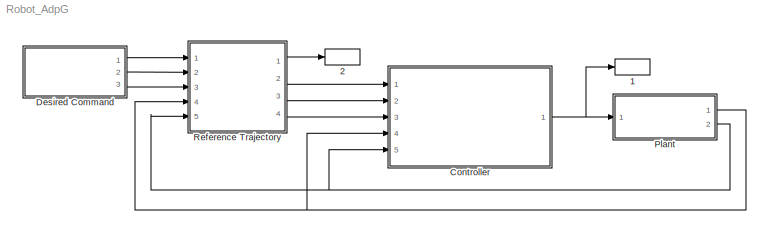
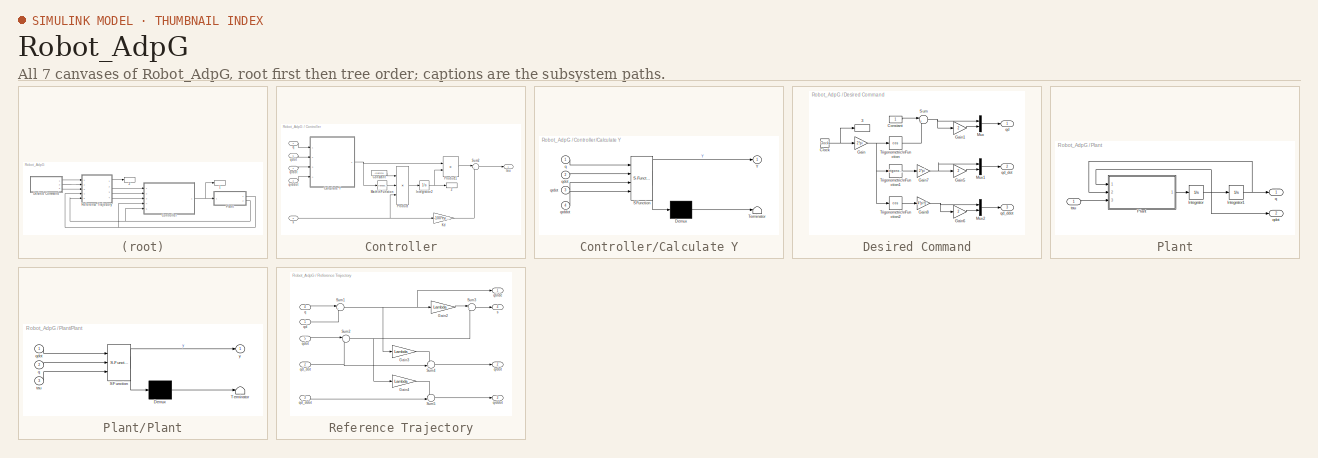
[diagram: thumbnail index - all 7 canvases of the model, root first then tree order]
MODEL Robot_AdpG
KIND model
BLOCK [ToWorkspace] 1
  MaxDataPoints = inf
  Ports = [1]
  SID = 77
  SampleTime = -1
  VariableName = tau
BLOCK [ToWorkspace] 2
  MaxDataPoints = inf
  Ports = [1]
  SID = 73
  SampleTime = -1
  VariableName = qtilde
BLOCK [SubSystem] Controller
  FunctionWithSeparateData = off
  MaskHideContents = off
  MinAlgLoopOccurrences = off
  Opaque = off
  Ports = [5, 1]
  PropExecContextOutsideSubsystem = off
  RTWSystemCode = Auto
  RequestExecContextInheritance = off
  SID = 82
BLOCK [ToWorkspace] Controller/2
  MaxDataPoints = inf
  Ports = [1]
  SID = 98
  SampleTime = -1
  VariableName = ahat
BLOCK [SubSystem] Controller/Calculate Y
  ErrorFcn = Stateflow.Translate.translate
  FunctionWithSeparateData = off
  MaskHideContents = off
  MinAlgLoopOccurrences = off
  Opaque = off
  PermitHierarchicalResolution = ExplicitOnly
  Ports = [4, 1]
  PropExecContextOutsideSubsystem = off
  RTWSystemCode = Auto
  RequestExecContextInheritance = off
  SFBlockType = MATLAB Function
  SID = 13
  TreatAsAtomicUnit = on
BLOCK [Demux] Controller/Calculate Y/ Demux 
  Outputs = 1
  Ports = [1, 1]
  SID = 13::27
BLOCK [S-Function] Controller/Calculate Y/ SFunction 
  EnableBusSupport = on
  FunctionName = sf_sfun
  PortCounts = [4 2]
  Ports = [4, 2]
  SID = 13::26
  Tag = Stateflow S-Function Robot_AdpG 1
BLOCK [Terminator] Controller/Calculate Y/ Terminator 
  SID = 13::29
BLOCK [Outport] Controller/Calculate Y/Y
  IconDisplay = Port number
  SID = 13::5
BLOCK [Inport] Controller/Calculate Y/q
  IconDisplay = Port number
  SID = 13::1
BLOCK [Inport] Controller/Calculate Y/qdot
  IconDisplay = Port number
  Port = 2
  SID = 13::18
BLOCK [Inport] Controller/Calculate Y/qrddot
  IconDisplay = Port number
  Port = 4
  SID = 13::21
BLOCK [Inport] Controller/Calculate Y/qrdot
  IconDisplay = Port number
  Port = 3
  SID = 13::20
BLOCK [Constant] Controller/Constant
  SID = 46
  Value = -Gamma
BLOCK [Integrator] Controller/Integrator2
  InitialCondition = [0;0;0;0;0;0;0];
  Ports = [1, 1]
  SID = 49
BLOCK [Gain] Controller/Kd
  Gain = -100*eye(2,2)
  Multiplication = Matrix(K*u)
  OutDataTypeStr = Inherit: Inherit via internal rule
  ParamDataTypeStr = Inherit: Inherit via internal rule
  SID = 51
  SaturateOnIntegerOverflow = off
BLOCK [Math] Controller/Math\nFunction
  Operator = transpose
  Ports = [1, 1]
  SID = 48
BLOCK [Product] Controller/Product
  InputSameDT = off
  Inputs = 3
  Multiplication = Matrix(*)
  OutDataTypeStr = Inherit: Inherit via internal rule
  Ports = [3, 1]
  SID = 47
  SaturateOnIntegerOverflow = off
BLOCK [Product] Controller/Product1
  InputSameDT = off
  Multiplication = Matrix(*)
  OutDataTypeStr = Inherit: Inherit via internal rule
  Ports = [2, 1]
  SID = 50
  SaturateOnIntegerOverflow = off
BLOCK [Sum] Controller/Sum2
  IconShape = round
  InputSameDT = off
  Inputs = |++
  OutDataTypeStr = Inherit: Inherit via internal rule
  Ports = [2, 1]
  SID = 52
  SaturateOnIntegerOverflow = off
BLOCK [Inport] Controller/q
  IconDisplay = Port number
  Port = 4
  SID = 83
BLOCK [Inport] Controller/qdot
  IconDisplay = Port number
  Port = 5
  SID = 85
BLOCK [Inport] Controller/qrddot
  IconDisplay = Port number
  Port = 2
  SID = 87
BLOCK [Inport] Controller/qrdot
  IconDisplay = Port number
  SID = 86
BLOCK [Inport] Controller/s
  IconDisplay = Port number
  Port = 3
  SID = 88
BLOCK [Outport] Controller/tau
  IconDisplay = Port number
  SID = 84
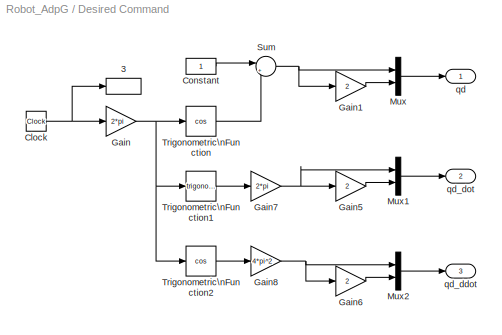
BLOCK [SubSystem] Desired Command
  FunctionWithSeparateData = off
  MaskHideContents = off
  MinAlgLoopOccurrences = off
  Opaque = off
  Ports = [0, 3]
  PropExecContextOutsideSubsystem = off
  RTWSystemCode = Auto
  RequestExecContextInheritance = off
  SID = 92
BLOCK [ToWorkspace] Desired Command/3
  MaxDataPoints = inf
  Ports = [1]
  SID = 74
  SampleTime = -1
  VariableName = time
BLOCK [Clock] Desired Command/Clock
  SID = 19
BLOCK [Constant] Desired Command/Constant
  SID = 21
BLOCK [Gain] Desired Command/Gain
  Gain = 2*pi
  OutDataTypeStr = Inherit: Inherit via internal rule
  ParamDataTypeStr = Inherit: Inherit via internal rule
  SID = 25
  SaturateOnIntegerOverflow = off
BLOCK [Gain] Desired Command/Gain1
  Gain = 2
  OutDataTypeStr = Inherit: Inherit via internal rule
  ParamDataTypeStr = Inherit: Inherit via internal rule
  SID = 27
  SaturateOnIntegerOverflow = off
BLOCK [Gain] Desired Command/Gain5
  Gain = 2
  OutDataTypeStr = Inherit: Inherit via internal rule
  ParamDataTypeStr = Inherit: Inherit via internal rule
  SID = 57
  SaturateOnIntegerOverflow = off
BLOCK [Gain] Desired Command/Gain6
  Gain = 2
  OutDataTypeStr = Inherit: Inherit via internal rule
  ParamDataTypeStr = Inherit: Inherit via internal rule
  SID = 69
  SaturateOnIntegerOverflow = off
BLOCK [Gain] Desired Command/Gain7
  Gain = 2*pi
  OutDataTypeStr = Inherit: Inherit via internal rule
  ParamDataTypeStr = Inherit: Inherit via internal rule
  SID = 66
  SaturateOnIntegerOverflow = off
BLOCK [Gain] Desired Command/Gain8
  Gain = 4*pi^2
  OutDataTypeStr = Inherit: Inherit via internal rule
  ParamDataTypeStr = Inherit: Inherit via internal rule
  SID = 68
  SaturateOnIntegerOverflow = off
BLOCK [Mux] Desired Command/Mux
  DisplayOption = bar
  Inputs = 2
  Ports = [2, 1]
  SID = 26
BLOCK [Mux] Desired Command/Mux1
  DisplayOption = bar
  Inputs = 2
  Ports = [2, 1]
  SID = 58
BLOCK [Mux] Desired Command/Mux2
  DisplayOption = bar
  Inputs = 2
  Ports = [2, 1]
  SID = 70
BLOCK [Sum] Desired Command/Sum
  IconShape = round
  InputSameDT = off
  Inputs = |+-
  OutDataTypeStr = Inherit: Inherit via internal rule
  Ports = [2, 1]
  SID = 23
  SaturateOnIntegerOverflow = off
BLOCK [Trigonometry] Desired Command/Trigonometric\nFunction
  Operator = cos
  Ports = [1, 1]
  SID = 64
BLOCK [Trigonometry] Desired Command/Trigonometric\nFunction1
  Ports = [1, 1]
  SID = 65
BLOCK [Trigonometry] Desired Command/Trigonometric\nFunction2
  Operator = cos
  Ports = [1, 1]
  SID = 67
BLOCK [Outport] Desired Command/qd
  IconDisplay = Port number
  SID = 94
BLOCK [Outport] Desired Command/qd_ddot
  IconDisplay = Port number
  Port = 3
  SID = 96
BLOCK [Outport] Desired Command/qd_dot
  IconDisplay = Port number
  Port = 2
  SID = 95
BLOCK [SubSystem] Plant
  FunctionWithSeparateData = off
  MaskHideContents = off
  MinAlgLoopOccurrences = off
  Opaque = off
  Ports = [1, 2]
  PropExecContextOutsideSubsystem = off
  RTWSystemCode = Auto
  RequestExecContextInheritance = off
  SID = 78
BLOCK [Integrator] Plant/Integrator
  InitialCondition = [0;0];
  Ports = [1, 1]
  SID = 2
BLOCK [Integrator] Plant/Integrator1
  InitialCondition = [0;0];
  Ports = [1, 1]
  SID = 3
BLOCK [SubSystem] Plant/Plant
  ErrorFcn = Stateflow.Translate.translate
  FunctionWithSeparateData = off
  MaskHideContents = off
  MinAlgLoopOccurrences = off
  Opaque = off
  PermitHierarchicalResolution = ExplicitOnly
  Ports = [3, 1]
  PropExecContextOutsideSubsystem = off
  RTWSystemCode = Auto
  RequestExecContextInheritance = off
  SFBlockType = MATLAB Function
  SID = 1
  TreatAsAtomicUnit = on
BLOCK [Demux] Plant/Plant/ Demux 
  Outputs = 1
  Ports = [1, 1]
  SID = 1::25
BLOCK [S-Function] Plant/Plant/ SFunction 
  EnableBusSupport = on
  FunctionName = sf_sfun
  PortCounts = [3 2]
  Ports = [3, 2]
  SID = 1::24
  Tag = Stateflow S-Function Robot_AdpG 2
BLOCK [Terminator] Plant/Plant/ Terminator 
  SID = 1::27
BLOCK [Inport] Plant/Plant/q
  IconDisplay = Port number
  Port = 2
  SID = 1::1
BLOCK [Inport] Plant/Plant/qdot
  IconDisplay = Port number
  SID = 1::18
BLOCK [Inport] Plant/Plant/tau
  IconDisplay = Port number
  Port = 3
  SID = 1::19
BLOCK [Outport] Plant/Plant/y
  IconDisplay = Port number
  SID = 1::5
BLOCK [Outport] Plant/q
  IconDisplay = Port number
  SID = 80
BLOCK [Outport] Plant/qdot
  IconDisplay = Port number
  Port = 2
  SID = 81
BLOCK [Inport] Plant/tau
  IconDisplay = Port number
  SID = 79
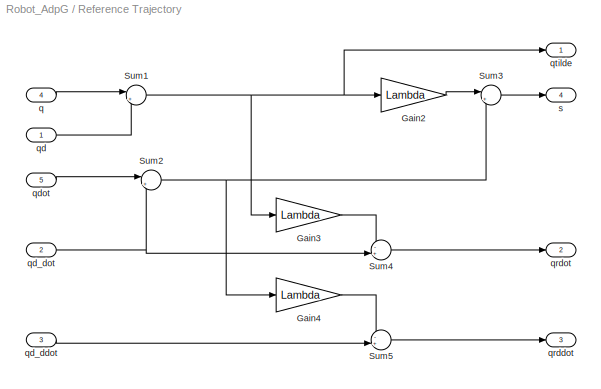
BLOCK [SubSystem] Reference Trajectory
  FunctionWithSeparateData = off
  MaskHideContents = off
  MinAlgLoopOccurrences = off
  Opaque = off
  Ports = [5, 4]
  PropExecContextOutsideSubsystem = off
  RTWSystemCode = Auto
  RequestExecContextInheritance = off
  SID = 14
BLOCK [Gain] Reference Trajectory/Gain2
  Gain = Lambda
  Multiplication = Matrix(K*u)
  OutDataTypeStr = Inherit: Inherit via internal rule
  ParamDataTypeStr = Inherit: Inherit via internal rule
  SID = 38
  SaturateOnIntegerOverflow = off
BLOCK [Gain] Reference Trajectory/Gain3
  Gain = Lambda
  Multiplication = Matrix(K*u)
  OutDataTypeStr = Inherit: Inherit via internal rule
  ParamDataTypeStr = Inherit: Inherit via internal rule
  SID = 41
  SaturateOnIntegerOverflow = off
BLOCK [Gain] Reference Trajectory/Gain4
  Gain = Lambda
  Multiplication = Matrix(K*u)
  OutDataTypeStr = Inherit: Inherit via internal rule
  ParamDataTypeStr = Inherit: Inherit via internal rule
  SID = 44
  SaturateOnIntegerOverflow = off
BLOCK [Sum] Reference Trajectory/Sum1
  IconShape = round
  InputSameDT = off
  Inputs = |+-
  OutDataTypeStr = Inherit: Inherit via internal rule
  Ports = [2, 1]
  SID = 35
  SaturateOnIntegerOverflow = off
BLOCK [Sum] Reference Trajectory/Sum2
  IconShape = round
  InputSameDT = off
  Inputs = |+-
  OutDataTypeStr = Inherit: Inherit via internal rule
  Ports = [2, 1]
  SID = 36
  SaturateOnIntegerOverflow = off
BLOCK [Sum] Reference Trajectory/Sum3
  IconShape = round
  InputSameDT = off
  Inputs = |++
  OutDataTypeStr = Inherit: Inherit via internal rule
  Ports = [2, 1]
  SID = 37
  SaturateOnIntegerOverflow = off
BLOCK [Sum] Reference Trajectory/Sum4
  IconShape = round
  InputSameDT = off
  Inputs = -+|
  OutDataTypeStr = Inherit: Inherit via internal rule
  Ports = [2, 1]
  SID = 42
  SaturateOnIntegerOverflow = off
BLOCK [Sum] Reference Trajectory/Sum5
  IconShape = round
  InputSameDT = off
  Inputs = -+|
  OutDataTypeStr = Inherit: Inherit via internal rule
  Ports = [2, 1]
  SID = 43
  SaturateOnIntegerOverflow = off
BLOCK [Inport] Reference Trajectory/q
  IconDisplay = Port number
  Port = 4
  SID = 30
BLOCK [Inport] Reference Trajectory/qd
  IconDisplay = Port number
  SID = 89
BLOCK [Inport] Reference Trajectory/qd_ddot
  IconDisplay = Port number
  Port = 3
  SID = 91
BLOCK [Inport] Reference Trajectory/qd_dot
  IconDisplay = Port number
  Port = 2
  SID = 90
BLOCK [Inport] Reference Trajectory/qdot
  IconDisplay = Port number
  Port = 5
  SID = 31
BLOCK [Outport] Reference Trajectory/qrddot
  IconDisplay = Port number
  Port = 3
  SID = 40
BLOCK [Outport] Reference Trajectory/qrdot
  IconDisplay = Port number
  Port = 2
  SID = 39
BLOCK [Outport] Reference Trajectory/qtilde
  IconDisplay = Port number
  SID = 32
BLOCK [Outport] Reference Trajectory/s
  IconDisplay = Port number
  Port = 4
  SID = 34
LINE Controller/Calculate Y/ Demux :1 -> Controller/Calculate Y/ Terminator :1
LINE Controller/Calculate Y/ SFunction :1 -> Controller/Calculate Y/ Demux :1
LINE Controller/Calculate Y/ SFunction :2 -> Controller/Calculate Y/Y:1
LINE Controller/Calculate Y/q:1 -> Controller/Calculate Y/ SFunction :1
LINE Controller/Calculate Y/qdot:1 -> Controller/Calculate Y/ SFunction :2
LINE Controller/Calculate Y/qrddot:1 -> Controller/Calculate Y/ SFunction :4
LINE Controller/Calculate Y/qrdot:1 -> Controller/Calculate Y/ SFunction :3
NET Controller/Calculate Y:1 -> Controller/Math\nFunction:1, Controller/Product1:1
LINE Controller/Constant:1 -> Controller/Product:1
NET Controller/Integrator2:1 -> Controller/2:1, Controller/Product1:2
LINE Controller/Kd:1 -> Controller/Sum2:2
LINE Controller/Math\nFunction:1 -> Controller/Product:2
LINE Controller/Product1:1 -> Controller/Sum2:1
LINE Controller/Product:1 -> Controller/Integrator2:1
LINE Controller/Sum2:1 -> Controller/tau:1
LINE Controller/q:1 -> Controller/Calculate Y:1
LINE Controller/qdot:1 -> Controller/Calculate Y:2
LINE Controller/qrddot:1 -> Controller/Calculate Y:4
LINE Controller/qrdot:1 -> Controller/Calculate Y:3
NET Controller/s:1 -> Controller/Kd:1, Controller/Product:3
NET Controller:1 -> 1:1, Plant:1
NET Desired Command/Clock:1 -> Desired Command/3:1, Desired Command/Gain:1
LINE Desired Command/Constant:1 -> Desired Command/Sum:1
LINE Desired Command/Gain1:1 -> Desired Command/Mux:2
LINE Desired Command/Gain5:1 -> Desired Command/Mux1:2
LINE Desired Command/Gain6:1 -> Desired Command/Mux2:2
NET Desired Command/Gain7:1 -> Desired Command/Gain5:1, Desired Command/Mux1:1
NET Desired Command/Gain8:1 -> Desired Command/Gain6:1, Desired Command/Mux2:1
NET Desired Command/Gain:1 -> Desired Command/Trigonometric\nFunction1:1, Desired Command/Trigonometric\nFunction2:1, Desired Command/Trigonometric\nFunction:1
LINE Desired Command/Mux1:1 -> Desired Command/qd_dot:1
LINE Desired Command/Mux2:1 -> Desired Command/qd_ddot:1
LINE Desired Command/Mux:1 -> Desired Command/qd:1
NET Desired Command/Sum:1 -> Desired Command/Gain1:1, Desired Command/Mux:1
LINE Desired Command/Trigonometric\nFunction1:1 -> Desired Command/Gain7:1
LINE Desired Command/Trigonometric\nFunction2:1 -> Desired Command/Gain8:1
LINE Desired Command/Trigonometric\nFunction:1 -> Desired Command/Sum:2
LINE Desired Command:1 -> Reference Trajectory:1
LINE Desired Command:2 -> Reference Trajectory:2
LINE Desired Command:3 -> Reference Trajectory:3
NET Plant/Integrator1:1 -> Plant/Plant:2, Plant/q:1
NET Plant/Integrator:1 -> Plant/Integrator1:1, Plant/Plant:1, Plant/qdot:1
LINE Plant/Plant/ Demux :1 -> Plant/Plant/ Terminator :1
LINE Plant/Plant/ SFunction :1 -> Plant/Plant/ Demux :1
LINE Plant/Plant/ SFunction :2 -> Plant/Plant/y:1
LINE Plant/Plant/q:1 -> Plant/Plant/ SFunction :2
LINE Plant/Plant/qdot:1 -> Plant/Plant/ SFunction :1
LINE Plant/Plant/tau:1 -> Plant/Plant/ SFunction :3
LINE Plant/Plant:1 -> Plant/Integrator:1
LINE Plant/tau:1 -> Plant/Plant:3
NET Plant:1 -> Controller:4, Reference Trajectory:4
NET Plant:2 -> Controller:5, Reference Trajectory:5
LINE Reference Trajectory/Gain2:1 -> Reference Trajectory/Sum3:1
LINE Reference Trajectory/Gain3:1 -> Reference Trajectory/Sum4:1
LINE Reference Trajectory/Gain4:1 -> Reference Trajectory/Sum5:1
NET Reference Trajectory/Sum1:1 -> Reference Trajectory/Gain2:1, Reference Trajectory/Gain3:1, Reference Trajectory/qtilde:1
NET Reference Trajectory/Sum2:1 -> Reference Trajectory/Gain4:1, Reference Trajectory/Sum3:2
LINE Reference Trajectory/Sum3:1 -> Reference Trajectory/s:1
LINE Reference Trajectory/Sum4:1 -> Reference Trajectory/qrdot:1
LINE Reference Trajectory/Sum5:1 -> Reference Trajectory/qrddot:1
LINE Reference Trajectory/q:1 -> Reference Trajectory/Sum1:1
LINE Reference Trajectory/qd:1 -> Reference Trajectory/Sum1:2
LINE Reference Trajectory/qd_ddot:1 -> Reference Trajectory/Sum5:2
NET Reference Trajectory/qd_dot:1 -> Reference Trajectory/Sum2:2, Reference Trajectory/Sum4:2
LINE Reference Trajectory/qdot:1 -> Reference Trajectory/Sum2:1
LINE Reference Trajectory:1 -> 2:1
LINE Reference Trajectory:2 -> Controller:1
LINE Reference Trajectory:3 -> Controller:2
LINE Reference Trajectory:4 -> Controller:3
note: NET lines group one-source signal fan-out (src -> all destinations, sorted); 1:1 wires keep LINE
CHART Controller/Calculate Y states=1 transitions=1
  STATE_LABEL 'eML_blk_kernel()'
CHART Plant/Plant states=1 transitions=1
  STATE_LABEL 'eML_blk_kernel()'
